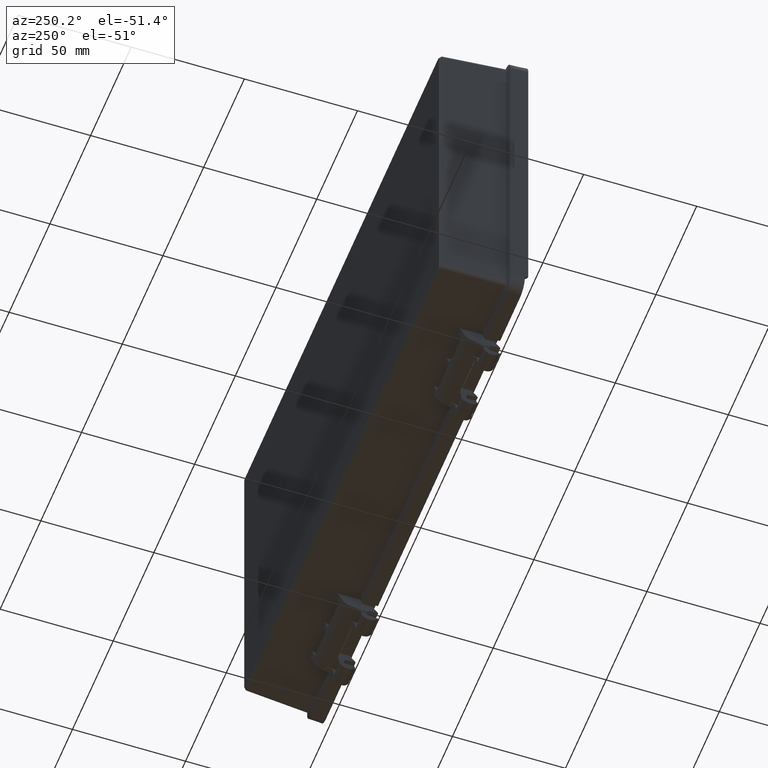
[diagram: clean part render]
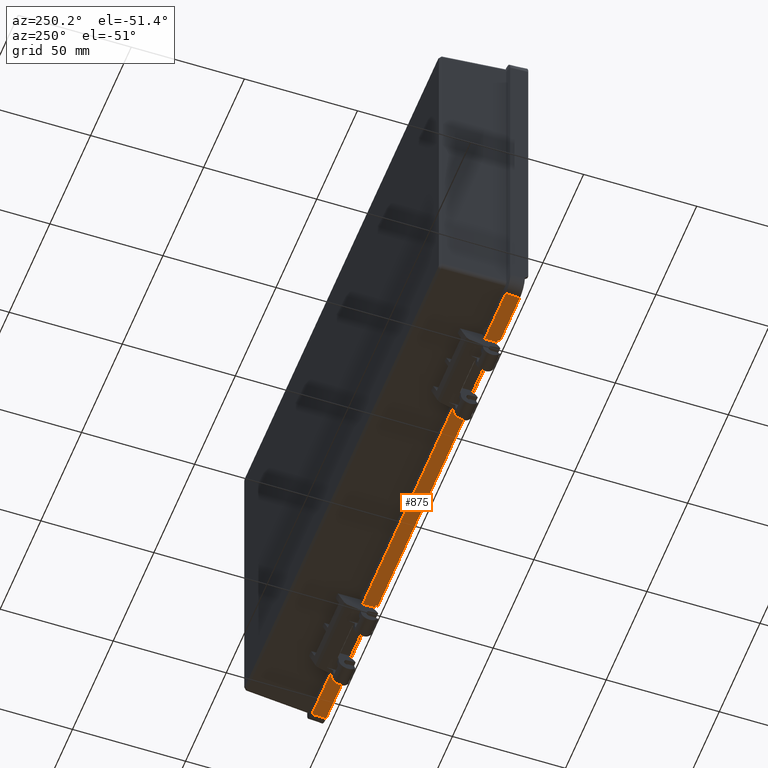
[diagram: same view with one face highlighted and labeled with its STEP entity id]
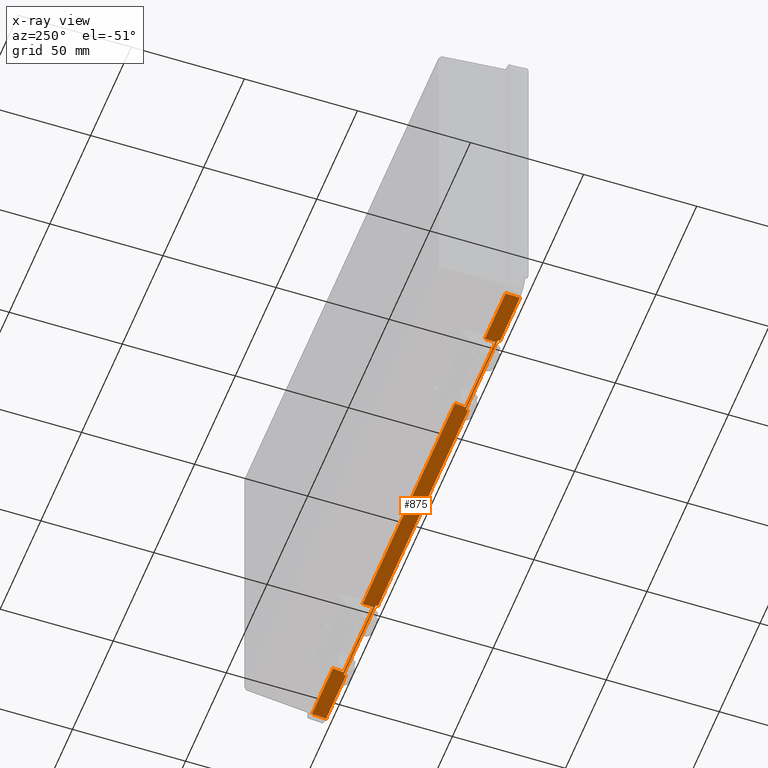
[diagram: x-ray of the same camera — body ghosted, the highlighted face saturated]
A machine part, auxiliary view. The second image highlights one B-rep face of the part: STEP entity #875.
The next image is the same camera in x-ray: the body ghosted, the highlighted face saturated — about 0% of this face is hidden behind the body in this view.
In plain terms, the highlighted planar face has unit normal (0, 0.0523, -0.9986).
Its self-contained STEP definition (entity closure, byte-faithful):
#235 = DIRECTION ( 'NONE',  ( 0.0000000000000000000, 0.9986295347545739400, 0.05233595624294395300 ) ) ;
#251 = CARTESIAN_POINT ( 'NONE',  ( -119.0000000000000100, 0.0000000000000000000, -75.00000000000000000 ) ) ;
#382 = PLANE ( 'NONE',  #4047 ) ;
#429 = DIRECTION ( 'NONE',  ( 0.0000000000000000000, 0.05233595624294395300, -0.9986295347545739400 ) ) ;
#875 = ADVANCED_FACE ( 'NONE', ( #9452 ), #382, .T. ) ;
#1302 = ORIENTED_EDGE ( 'NONE', *, *, #3682, .T. ) ;
#1320 = ORIENTED_EDGE ( 'NONE', *, *, #3594, .F. ) ;
#1336 = ORIENTED_EDGE ( 'NONE', *, *, #2536, .T. ) ;
#1379 = ORIENTED_EDGE ( 'NONE', *, *, #2542, .F. ) ;
#1399 = ORIENTED_EDGE ( 'NONE', *, *, #2499, .F. ) ;
#1401 = ORIENTED_EDGE ( 'NONE', *, *, #2460, .T. ) ;
#1405 = ORIENTED_EDGE ( 'NONE', *, *, #2469, .F. ) ;
#1407 = ORIENTED_EDGE ( 'NONE', *, *, #2468, .F. ) ;
#1408 = ORIENTED_EDGE ( 'NONE', *, *, #2461, .T. ) ;
#1414 = ORIENTED_EDGE ( 'NONE', *, *, #2514, .F. ) ;
#1415 = ORIENTED_EDGE ( 'NONE', *, *, #2529, .T. ) ;
#1416 = ORIENTED_EDGE ( 'NONE', *, *, #2458, .T. ) ;
#1421 = ORIENTED_EDGE ( 'NONE', *, *, #2528, .T. ) ;
#1444 = ORIENTED_EDGE ( 'NONE', *, *, #2462, .F. ) ;
#1472 = ORIENTED_EDGE ( 'NONE', *, *, #2524, .T. ) ;
#1484 = ORIENTED_EDGE ( 'NONE', *, *, #2487, .F. ) ;
#1487 = ORIENTED_EDGE ( 'NONE', *, *, #2486, .T. ) ;
#1505 = ORIENTED_EDGE ( 'NONE', *, *, #2439, .F. ) ;
#1508 = ORIENTED_EDGE ( 'NONE', *, *, #2455, .T. ) ;
#1516 = ORIENTED_EDGE ( 'NONE', *, *, #2459, .T. ) ;
#2439 = EDGE_CURVE ( 'NONE', #13858, #13692, #9497, .T. ) ;
#2455 = EDGE_CURVE ( 'NONE', #13839, #13641, #9509, .T. ) ;
#2458 = EDGE_CURVE ( 'NONE', #13793, #13565, #9512, .T. ) ;
#2459 = EDGE_CURVE ( 'NONE', #13489, #13692, #9513, .T. ) ;
#2460 = EDGE_CURVE ( 'NONE', #13864, #13653, #9514, .T. ) ;
#2461 = EDGE_CURVE ( 'NONE', #13691, #13864, #9515, .T. ) ;
#2462 = EDGE_CURVE ( 'NONE', #13876, #13587, #9516, .T. ) ;
#2468 = EDGE_CURVE ( 'NONE', #13537, #13653, #9522, .T. ) ;
#2469 = EDGE_CURVE ( 'NONE', #13825, #13565, #9523, .T. ) ;
#2486 = EDGE_CURVE ( 'NONE', #13876, #13691, #9538, .T. ) ;
#2487 = EDGE_CURVE ( 'NONE', #13587, #13639, #9539, .T. ) ;
#2499 = EDGE_CURVE ( 'NONE', #13639, #13641, #9551, .T. ) ;
#2514 = EDGE_CURVE ( 'NONE', #13600, #13825, #9562, .T. ) ;
#2524 = EDGE_CURVE ( 'NONE', #13600, #13585, #9568, .T. ) ;
#2528 = EDGE_CURVE ( 'NONE', #13585, #13608, #9570, .T. ) ;
#2529 = EDGE_CURVE ( 'NONE', #13537, #13793, #9571, .T. ) ;
#2536 = EDGE_CURVE ( 'NONE', #13662, #13489, #9577, .T. ) ;
#2542 = EDGE_CURVE ( 'NONE', #13839, #13858, #9583, .T. ) ;
#3594 = EDGE_CURVE ( 'NONE', #13734, #13608, #6163, .T. ) ;
#3682 = EDGE_CURVE ( 'NONE', #13734, #13662, #6241, .T. ) ;
#3959 = VECTOR ( 'NONE', #6999, 1000.000000000000100 ) ;
#3969 = VECTOR ( 'NONE', #6892, 1000.000000000000100 ) ;
#3976 = VECTOR ( 'NONE', #6909, 1000.000000000000000 ) ;
#3980 = VECTOR ( 'NONE', #6807, 1000.000000000000000 ) ;
#4007 = VECTOR ( 'NONE', #6891, 1000.000000000000000 ) ;
#4011 = VECTOR ( 'NONE', #6947, 1000.000000000000100 ) ;
#4014 = VECTOR ( 'NONE', #6809, 1000.000000000000100 ) ;
#4015 = VECTOR ( 'NONE', #6848, 1000.000000000000000 ) ;
#4047 = AXIS2_PLACEMENT_3D ( 'NONE', #251, #429, #235 ) ;
#4058 = VECTOR ( 'NONE', #6897, 1000.000000000000000 ) ;
#4061 = VECTOR ( 'NONE', #6471, 1000.000000000000000 ) ;
#4066 = VECTOR ( 'NONE', #6808, 1000.000000000000100 ) ;
#4112 = VECTOR ( 'NONE', #6842, 1000.000000000000000 ) ;
#4117 = VECTOR ( 'NONE', #7030, 1000.000000000000100 ) ;
#4118 = VECTOR ( 'NONE', #6811, 1000.000000000000100 ) ;
#4132 = VECTOR ( 'NONE', #6936, 1000.000000000000100 ) ;
#4133 = VECTOR ( 'NONE', #6858, 1000.000000000000000 ) ;
#4141 = VECTOR ( 'NONE', #6825, 1000.000000000000000 ) ;
#4147 = VECTOR ( 'NONE', #6964, 1000.000000000000100 ) ;
#6163 = LINE ( 'NONE', #7349, #13216 ) ;
#6241 = LINE ( 'NONE', #7690, #13313 ) ;
#6471 = DIRECTION ( 'NONE',  ( 1.000000000000000000, -0.0000000000000000000, -0.0000000000000000000 ) ) ;
#6472 = CARTESIAN_POINT ( 'NONE',  ( -119.0000000000000100, -0.9999999999999822400, -75.05240777928304400 ) ) ;
#6807 = DIRECTION ( 'NONE',  ( 1.000000000000000000, -0.0000000000000000000, -0.0000000000000000000 ) ) ;
#6808 = DIRECTION ( 'NONE',  ( 0.1734173605119497800, 0.9834987238775092500, 0.05154298404612530500 ) ) ;
#6809 = DIRECTION ( 'NONE',  ( 0.05226442768871403200, -0.9972646886342372300, -0.05226442768871403200 ) ) ;
#6811 = DIRECTION ( 'NONE',  ( -0.1734173605119497300, -0.9834987238775092500, -0.05154298404612530500 ) ) ;
#6813 = CARTESIAN_POINT ( 'NONE',  ( 93.50000000000000000, 0.5577223533459672000, -74.97077101000462600 ) ) ;
#6817 = CARTESIAN_POINT ( 'NONE',  ( -93.50000000000000000, 0.5577223533459672000, -74.97077101000462600 ) ) ;
#6819 = CARTESIAN_POINT ( 'NONE',  ( 119.0000000000000100, 0.0000000000000000000, -75.00000000000000000 ) ) ;
#6820 = CARTESIAN_POINT ( 'NONE',  ( -95.26585548018572100, -4.173507190989458800, -75.21872424370155800 ) ) ;
#6825 = DIRECTION ( 'NONE',  ( -1.000000000000000000, -0.0000000000000000000, -0.0000000000000000000 ) ) ;
#6834 = CARTESIAN_POINT ( 'NONE',  ( 119.0000000000000100, 5.301644558294508000, -74.72215258215175000 ) ) ;
#6842 = DIRECTION ( 'NONE',  ( -1.000000000000000000, -0.0000000000000000000, -0.0000000000000000000 ) ) ;
#6848 = DIRECTION ( 'NONE',  ( 1.000000000000000000, -0.0000000000000000000, -0.0000000000000000000 ) ) ;
#6849 = CARTESIAN_POINT ( 'NONE',  ( -57.38061964138432800, 10.83539905204088200, -74.43214079803696800 ) ) ;
#6855 = CARTESIAN_POINT ( 'NONE',  ( -119.0000000000000100, 1.857658227778226400E-014, -75.00000000000000000 ) ) ;
#6858 = DIRECTION ( 'NONE',  ( 1.000000000000000000, -0.0000000000000000000, -0.0000000000000000000 ) ) ;
#6878 = CARTESIAN_POINT ( 'NONE',  ( -119.0000000000000100, -1.087967874829069200E-015, -74.99999999999998600 ) ) ;
#6889 = CARTESIAN_POINT ( 'NONE',  ( 50.22310738077460700, -29.75687010524574600, -76.55949148062984500 ) ) ;
#6891 = DIRECTION ( 'NONE',  ( 1.000000000000000000, -0.0000000000000000000, -0.0000000000000000000 ) ) ;
#6892 = DIRECTION ( 'NONE',  ( -0.05226442768871403200, -0.9972646886342372300, -0.05226442768871403200 ) ) ;
#6895 = CARTESIAN_POINT ( 'NONE',  ( -119.0000000000000100, -0.9999999999999824600, -75.05240777928304400 ) ) ;
#6897 = DIRECTION ( 'NONE',  ( 1.000000000000000000, -0.0000000000000000000, -0.0000000000000000000 ) ) ;
#6903 = CARTESIAN_POINT ( 'NONE',  ( 93.48361057759024100, 0.3127288092337924300, -74.98361057759022700 ) ) ;
#6909 = DIRECTION ( 'NONE',  ( -1.000000000000000000, -0.0000000000000000000, -0.0000000000000000000 ) ) ;
#6914 = CARTESIAN_POINT ( 'NONE',  ( -56.67072315010180000, 3.257591762852002100, -74.82927684989819300 ) ) ;
#6924 = CARTESIAN_POINT ( 'NONE',  ( -93.56965504524153200, -1.329097439243617000, -75.06965504524153200 ) ) ;
#6936 = DIRECTION ( 'NONE',  ( -0.0000000000000000000, -0.9986295347545739400, -0.05233595624294395300 ) ) ;
#6938 = CARTESIAN_POINT ( 'NONE',  ( 119.0000000000000100, 5.301644558294508000, -74.72215258215175000 ) ) ;
#6947 = DIRECTION ( 'NONE',  ( 0.05226442768871403200, -0.9972646886342372300, -0.05226442768871403200 ) ) ;
#6951 = CARTESIAN_POINT ( 'NONE',  ( 56.51638942240975200, 0.3127288092337924300, -74.98361057759022700 ) ) ;
#6953 = CARTESIAN_POINT ( 'NONE',  ( 119.0000000000000100, 5.301644558294508000, -74.72215258215175000 ) ) ;
#6964 = DIRECTION ( 'NONE',  ( 0.1734173605119497300, -0.9834987238775092500, -0.05154298404612530500 ) ) ;
#6973 = CARTESIAN_POINT ( 'NONE',  ( -119.0000000000000100, 1.857658227778226400E-014, -75.00000000000000000 ) ) ;
#6999 = DIRECTION ( 'NONE',  ( -0.0000000000000000000, -0.9986295347545739400, -0.05233595624294395300 ) ) ;
#7030 = DIRECTION ( 'NONE',  ( -0.05226442768871403200, -0.9972646886342372300, -0.05226442768871403200 ) ) ;
#7349 = CARTESIAN_POINT ( 'NONE',  ( -119.0000000000000100, -0.9999999999999824600, -75.05240777928304400 ) ) ;
#7350 = DIRECTION ( 'NONE',  ( 1.000000000000000000, -0.0000000000000000000, -0.0000000000000000000 ) ) ;
#7690 = CARTESIAN_POINT ( 'NONE',  ( 88.10834321957601400, 36.41876196629719700, -73.09137356110866800 ) ) ;
#7691 = DIRECTION ( 'NONE',  ( -0.1734173605119497800, 0.9834987238775092500, 0.05154298404612530500 ) ) ;
#8598 = CARTESIAN_POINT ( 'NONE',  ( 55.47004644176658400, 1.850991689788224400E-014, -75.00000000000000000 ) ) ;
#8607 = CARTESIAN_POINT ( 'NONE',  ( -56.77784741784823600, 5.301644558294508000, -74.72215258215175000 ) ) ;
#8615 = CARTESIAN_POINT ( 'NONE',  ( 56.52922898999536000, 0.5577223533459672000, -74.97077101000462600 ) ) ;
#8623 = CARTESIAN_POINT ( 'NONE',  ( 119.0000000000000100, 5.301644558294510600, -74.72215258215175000 ) ) ;
#8624 = CARTESIAN_POINT ( 'NONE',  ( -119.0000000000000100, -0.9999999999999824600, -75.05240777928303000 ) ) ;
#8628 = CARTESIAN_POINT ( 'NONE',  ( 93.22215258215177900, 5.301644558294508000, -74.72215258215175000 ) ) ;
#8632 = CARTESIAN_POINT ( 'NONE',  ( 119.0000000000000100, -0.9999999999999824600, -75.05240777928304400 ) ) ;
#8643 = CARTESIAN_POINT ( 'NONE',  ( -94.70628053894195400, -0.9999999999999831200, -75.05240777928304400 ) ) ;
#8644 = CARTESIAN_POINT ( 'NONE',  ( -94.52995355823348700, 1.850991689788224400E-014, -75.00000000000000000 ) ) ;
#8649 = CARTESIAN_POINT ( 'NONE',  ( -56.52922898999537400, 0.5577223533459672000, -74.97077101000462600 ) ) ;
#8650 = CARTESIAN_POINT ( 'NONE',  ( 94.52995355823348700, 1.850991689788224400E-014, -75.00000000000000000 ) ) ;
#8658 = CARTESIAN_POINT ( 'NONE',  ( -93.22215258215179300, 5.301644558294508000, -74.72215258215175000 ) ) ;
#8659 = CARTESIAN_POINT ( 'NONE',  ( 55.29371946105812400, -0.9999999999999822400, -75.05240777928304400 ) ) ;
#8670 = CARTESIAN_POINT ( 'NONE',  ( 94.70628053894195400, -0.9999999999999824600, -75.05240777928304400 ) ) ;
#8684 = CARTESIAN_POINT ( 'NONE',  ( 56.77784741784822100, 5.301644558294508000, -74.72215258215175000 ) ) ;
#8695 = CARTESIAN_POINT ( 'NONE',  ( 93.47077101000464000, 0.5577223533459672000, -74.97077101000462600 ) ) ;
#8702 = CARTESIAN_POINT ( 'NONE',  ( -55.47004644176658400, 1.850991689788224400E-014, -75.00000000000000000 ) ) ;
#8705 = CARTESIAN_POINT ( 'NONE',  ( -55.29371946105811000, -0.9999999999999822400, -75.05240777928304400 ) ) ;
#8707 = CARTESIAN_POINT ( 'NONE',  ( -93.47077101000462600, 0.5577223533459672000, -74.97077101000462600 ) ) ;
#8712 = CARTESIAN_POINT ( 'NONE',  ( -119.0000000000000100, 5.301644558294509800, -74.72215258215175000 ) ) ;
#9452 = FACE_OUTER_BOUND ( 'NONE', #13540, .T. ) ;
#9497 = LINE ( 'NONE', #6472, #4061 ) ;
#9509 = LINE ( 'NONE', #6855, #4112 ) ;
#9512 = LINE ( 'NONE', #6951, #4117 ) ;
#9513 = LINE ( 'NONE', #6889, #4118 ) ;
#9514 = LINE ( 'NONE', #6817, #4007 ) ;
#9515 = LINE ( 'NONE', #6924, #3969 ) ;
#9516 = LINE ( 'NONE', #6878, #3959 ) ;
#9522 = LINE ( 'NONE', #6914, #4011 ) ;
#9523 = LINE ( 'NONE', #6813, #3976 ) ;
#9538 = LINE ( 'NONE', #6834, #3980 ) ;
#9539 = LINE ( 'NONE', #6895, #4058 ) ;
#9551 = LINE ( 'NONE', #6820, #4066 ) ;
#9562 = LINE ( 'NONE', #6903, #4014 ) ;
#9568 = LINE ( 'NONE', #6953, #4015 ) ;
#9570 = LINE ( 'NONE', #6819, #4132 ) ;
#9571 = LINE ( 'NONE', #6938, #4133 ) ;
#9577 = LINE ( 'NONE', #6973, #4141 ) ;
#9583 = LINE ( 'NONE', #6849, #4147 ) ;
#13216 = VECTOR ( 'NONE', #7350, 1000.000000000000000 ) ;
#13313 = VECTOR ( 'NONE', #7691, 1000.000000000000100 ) ;
#13489 = VERTEX_POINT ( 'NONE', #8598 ) ;
#13537 = VERTEX_POINT ( 'NONE', #8607 ) ;
#13540 = EDGE_LOOP ( 'NONE', ( #1320, #1302, #1336, #1516, #1505, #1379, #1508, #1399, #1484, #1444, #1487, #1408, #1401, #1407, #1415, #1416, #1405, #1414, #1472, #1421 ) ) ;
#13565 = VERTEX_POINT ( 'NONE', #8615 ) ;
#13585 = VERTEX_POINT ( 'NONE', #8623 ) ;
#13587 = VERTEX_POINT ( 'NONE', #8624 ) ;
#13600 = VERTEX_POINT ( 'NONE', #8628 ) ;
#13608 = VERTEX_POINT ( 'NONE', #8632 ) ;
#13639 = VERTEX_POINT ( 'NONE', #8643 ) ;
#13641 = VERTEX_POINT ( 'NONE', #8644 ) ;
#13653 = VERTEX_POINT ( 'NONE', #8649 ) ;
#13662 = VERTEX_POINT ( 'NONE', #8650 ) ;
#13691 = VERTEX_POINT ( 'NONE', #8658 ) ;
#13692 = VERTEX_POINT ( 'NONE', #8659 ) ;
#13734 = VERTEX_POINT ( 'NONE', #8670 ) ;
#13793 = VERTEX_POINT ( 'NONE', #8684 ) ;
#13825 = VERTEX_POINT ( 'NONE', #8695 ) ;
#13839 = VERTEX_POINT ( 'NONE', #8702 ) ;
#13858 = VERTEX_POINT ( 'NONE', #8705 ) ;
#13864 = VERTEX_POINT ( 'NONE', #8707 ) ;
#13876 = VERTEX_POINT ( 'NONE', #8712 ) ;